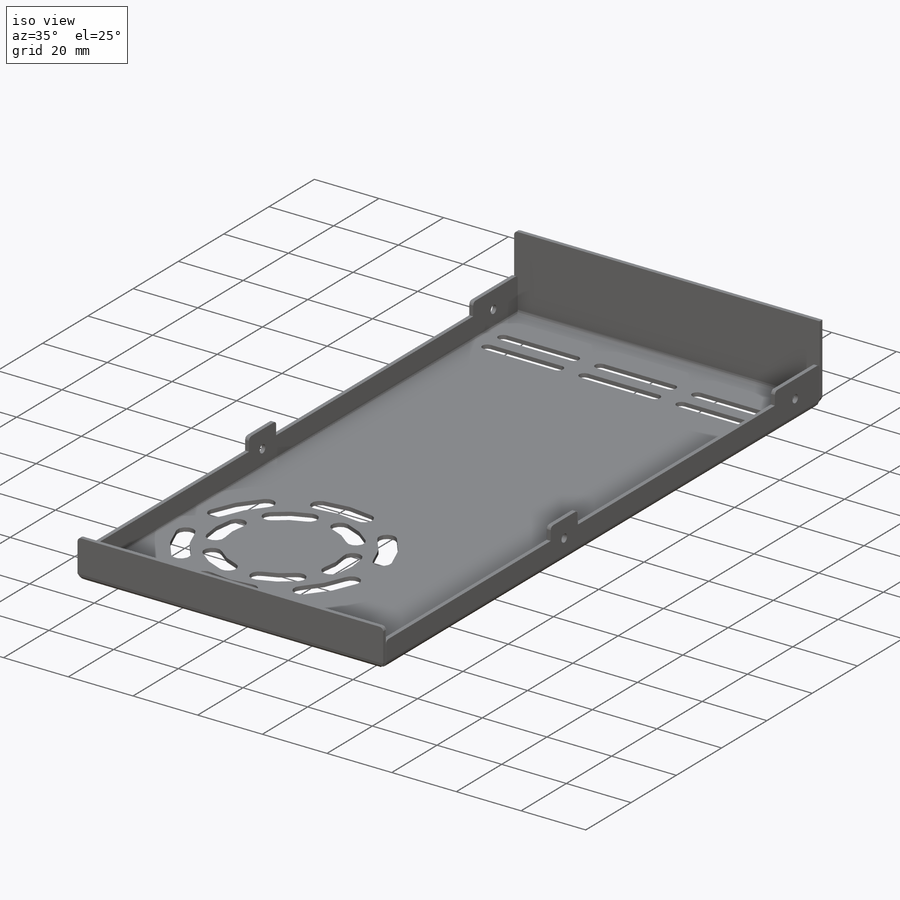
[diagram: iso view]
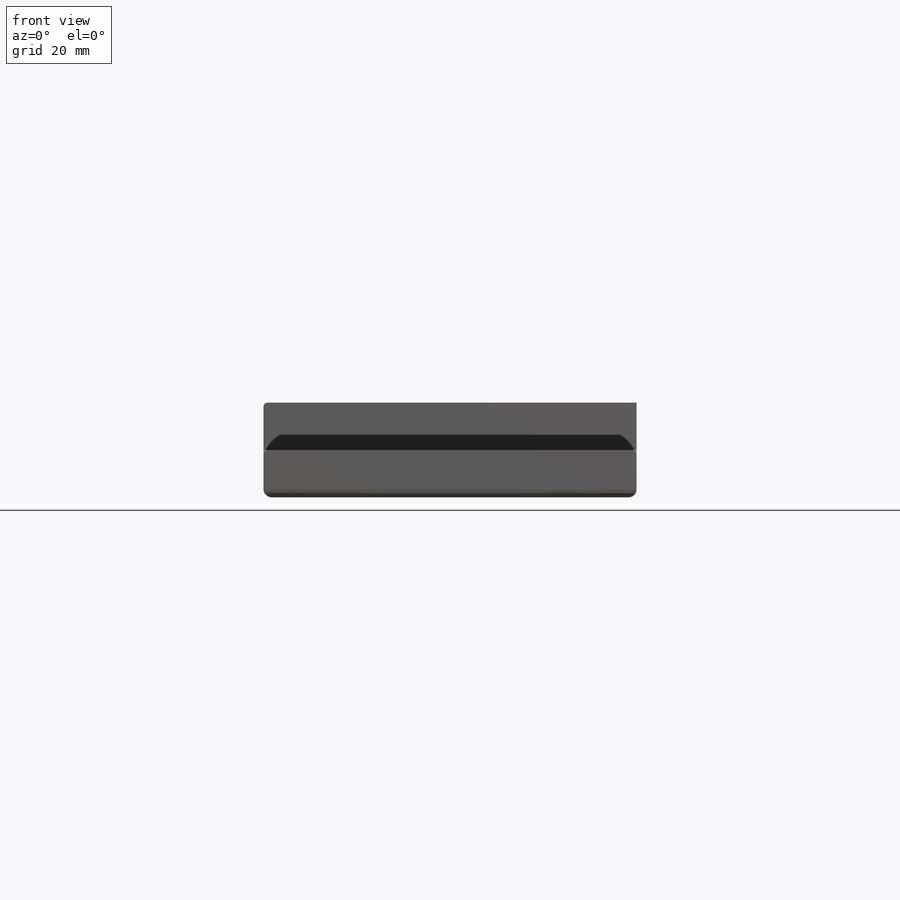
[diagram: front view]
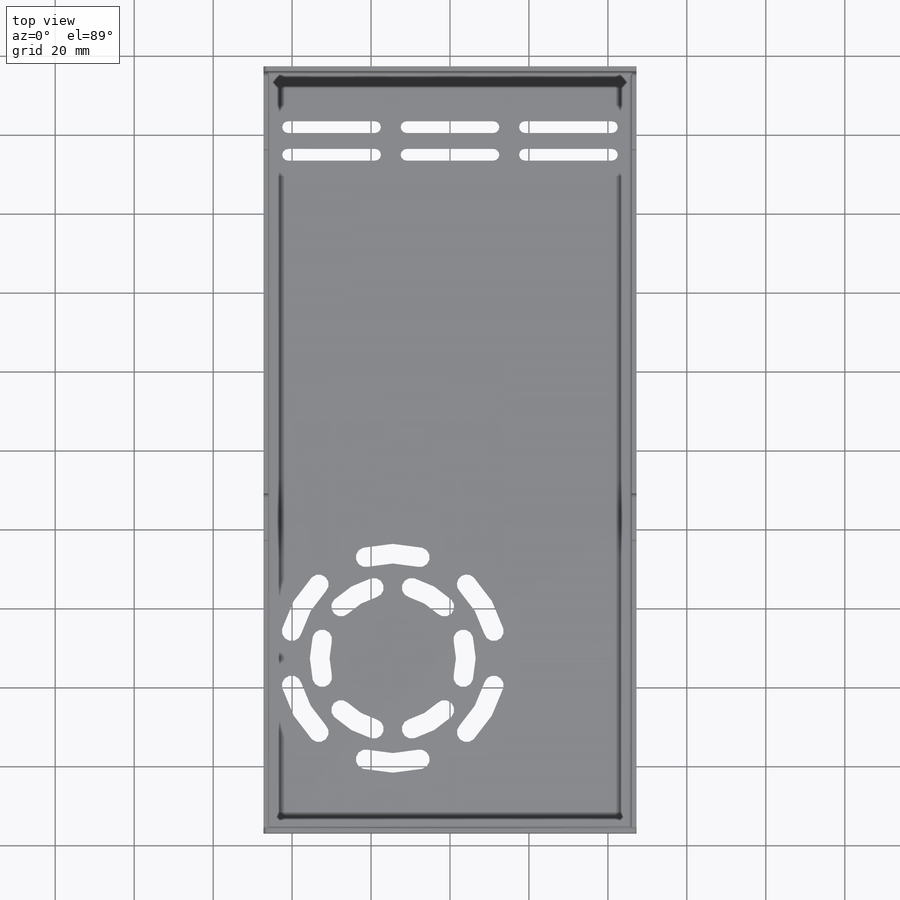
[diagram: top view]
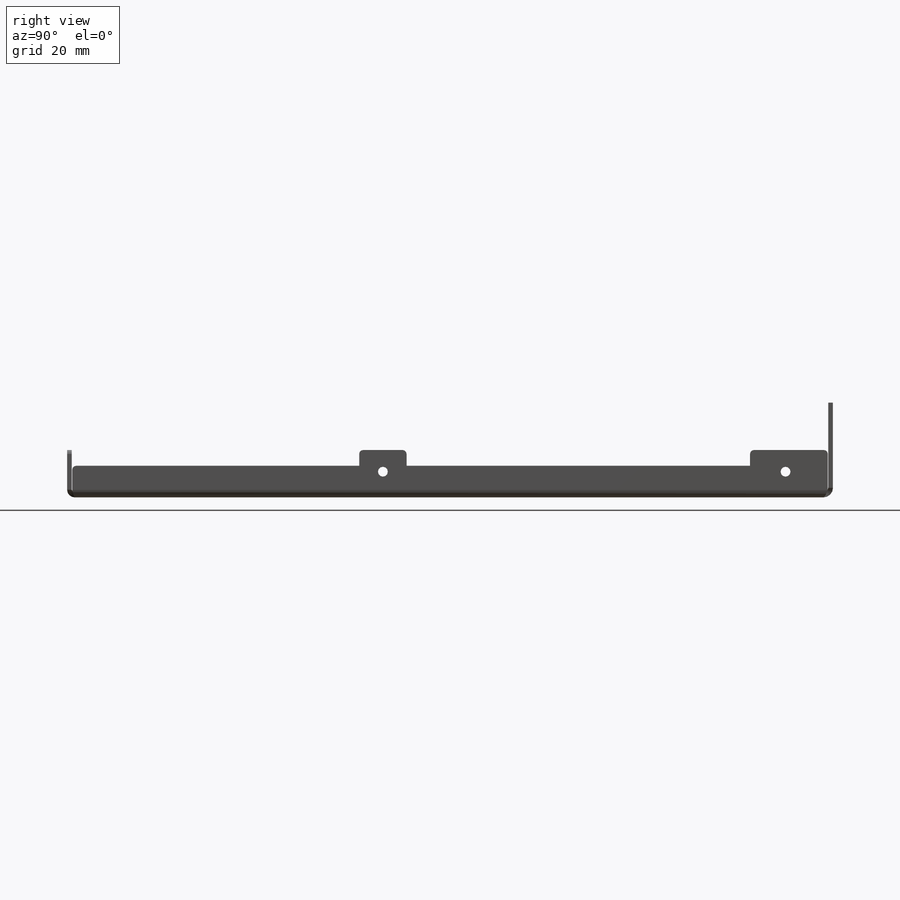
[diagram: right view]
SOLIDWORKS PART (.sldprt)
format: sldprt  version: not decoded by parser v0  size: 804,864 bytes
history: native  units: mm
features: sketch x27, sheet_metal_op x11, hole x7, cut_extrude x3, fillet x2, material x1, thread x1 + 23 further entries (+13 scaffold rows collapsed; 7 parser-record rows omitted)
feature tree (95):
  scaffold x13  (default folders/planes/origin — collapsed)
  material  "3003 Alloy"
  sketch  "Sketch1"  dims[c1.D1=94.5mm c1.D2=194.0mm c2.D1=0.7366mm c2.D2=0.5 c2.D3=0.0mm c2.D6=500.0mm]
  sheet_metal_op  "Base-Flange1"
  sketch  "Sketch10"
  sketch  "Sketch11"
  sketch  "Sketch13"  dims[D1=0.7366mm D4=90.0deg D5=1.0 D8=0.6mm D9=0.6mm]
  sheet_metal_op  "EdgeBend2"
  sheet_metal_op  "EdgeBend3"  Edge-Flange2=0
  sketch  "Sketch18"
  sheet_metal_op  "EdgeBend4"
  sketch  "Sketch19"  dims[D1=8.0mm D2=3.0mm D3=21.0mm D4=30.0mm D5=16.0mm D6=87.0mm D7=12.0mm]
  cut_extrude  "Cut-Extrude1"  [1 undecoded]
  fillet  "Fillet1"  Radius=1mm
  sketch  "Sketch23"  dims[D1=6.5mm D2=102.0mm]
  hole  "M3x0.5 Tapped Hole1"  Diameter=2.5mm Depth=94.671161mm
  sketch  "3DSketch1"
  sketch  "Sketch24"  dims[hole-wizard template sketch: 60 standard entries collapsed; hole parameters kept: c18.Thru Tap Drill Depth=~94.671161mm]
  thread  "Hole Thread1"  Diameter=94.5mm  [1 undecoded]
  fillet  "Hole Thread2"  Radius=94.5mm
  sketch  "Sketch25"  dims[c1.D5=3.0mm c1.D6=18.5mm c1.D9=26.5mm c1.D10=~3.88371mm c2.D6=16.0mm c2.D7=24.0mm c2.D8=2.5mm c2.D10=2.5mm c2.D1=9.0mm c2.D2=45.5mm c2.D3=34.45mm c2.D4=50.0mm c3.D7=~17.204317mm c3.D10=~22.987684mm c3.D1=32.75mm c3.D2=42.5mm c3.D3=~22.102585mm c4.D3=50.0deg c5.D3=~17.686446mm c6.D3=30.0deg c6.D4=~25.536887mm c7.D4=30.0deg c7.D5=~25.515153mm c8.D5=15.0deg c8.D7=65.0deg c8.D10=72.0deg c8.D9=6.0]
  cut_extrude  "Cut-Extrude2"  [1 undecoded]
  sketch  "Sketch28"  dims[c1.D1=1.5mm c1.D2=1.5mm c2.D1=1.5mm c2.D2=22.0mm c2.D3=32.75mm c2.D4=15.0mm c2.D7=7.0mm c2.D8=45.0mm c3.D1=11.5mm c3.D6=30.0mm c3.D7=7.0mm c3.D5=2.0 c3.D3=2.0]
  cut_extrude  "Cut-Extrude3"  [1 undecoded]
  sketch  "Bend-Lines1"
  sketch  "Bounding-Box1"
  sheet_metal_op  "Sheet-Metal1"
  "Flat-Pattern1"
  sketch  "Bend-Lines2"
  sketch  "Bounding-Box2"
  parser-record x7  (decoder bookkeeping rows leaked as tree rows — omitted from the tree; the rows remain in map.json)
  hole  "Sheet-Metal2"  Diameter=0.7366mm
  sheet_metal_op  "Flat-Pattern1"
  sketch  "Bend-Lines2"
  sketch  "Bounding-Box2"
  "Flatten-<EdgeBend2>1"
  "Flatten-<EdgeBend3>1"
  hole  "Sheet-Metal3"  Diameter=0.7366mm
  sheet_metal_op  "Flat-Pattern1"
  sketch  "Bend-Lines2"
  sketch  "Bounding-Box2"
  "Flatten-<EdgeBend1>1"
  "Flatten-<EdgeBend2>1"
  "Flatten-<EdgeBend3>1"
  "Flatten-<EdgeBend4>1"
  hole  "Sheet-Metal4"  Diameter=0.7366mm
  sheet_metal_op  "Flat-Pattern1"
  sketch  "Bend-Lines2"
  sketch  "Bounding-Box2"
  "Flatten-<EdgeBend1>1"
  "Flatten-<EdgeBend2>1"
  "Flatten-<EdgeBend3>1"
  "Flatten-<EdgeBend4>1"
  hole  "Sheet-Metal6"  Diameter=0.7366mm
  sheet_metal_op  "Flat-Pattern1"
  sketch  "Bend-Lines3"
  sketch  "Bounding-Box3"
  "Flatten-<EdgeBend1>2"
  "Flatten-<EdgeBend2>2"
  "Flatten-<EdgeBend3>2"
  "Flatten-<EdgeBend4>2"
  hole  "Sheet-Metal7"  Diameter=0.7366mm
  sheet_metal_op  "Flat-Pattern1"
  sketch  "Bend-Lines3"
  sketch  "Bounding-Box3"
  "Flatten-<EdgeBend1>2"
  "Flatten-<EdgeBend2>2"
  "Flatten-<EdgeBend3>2"
  "Flatten-<EdgeBend4>2"
  hole  "Sheet-Metal10"  Diameter=0.7366mm
  sheet_metal_op  "Flat-Pattern1"
  sketch  "Bend-Lines3"
  sketch  "Bounding-Box3"
  "Flatten-<EdgeBend1>2"
  "Flatten-<EdgeBend2>2"
  "Flatten-<EdgeBend3>2"
  "Flatten-<EdgeBend4>2"
decode coverage: 18 of 51 modeling features carry decoded parameters; 23 rows unclassified (native names shown)
note: ~ marks probable driven/reference dimensions
note: 4 parameter values undecoded
summary: no parameter record found for 3 features
note: suppression state not decoded; provenance and decode notes live in map.json
